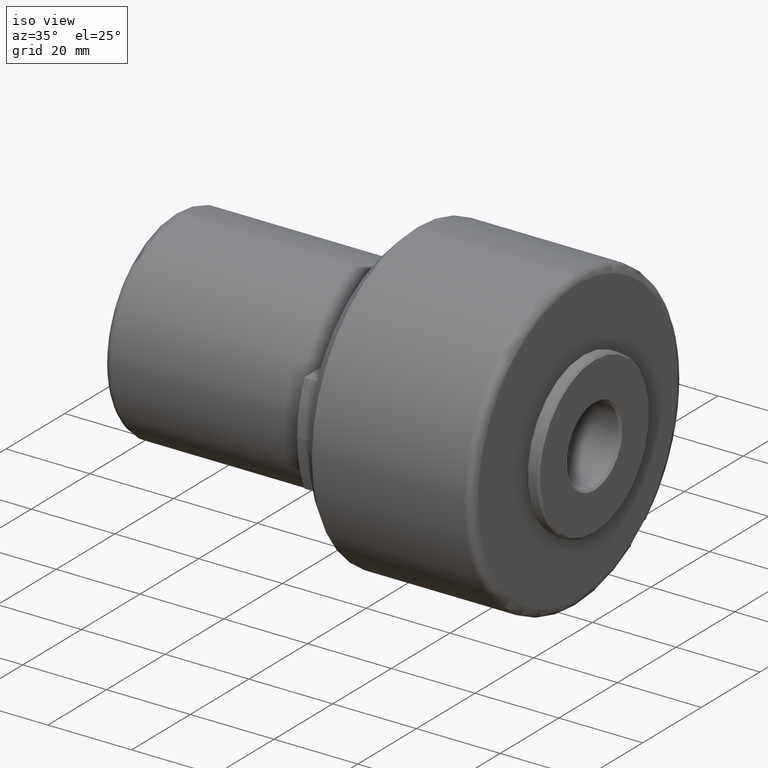
[diagram: clean part render]
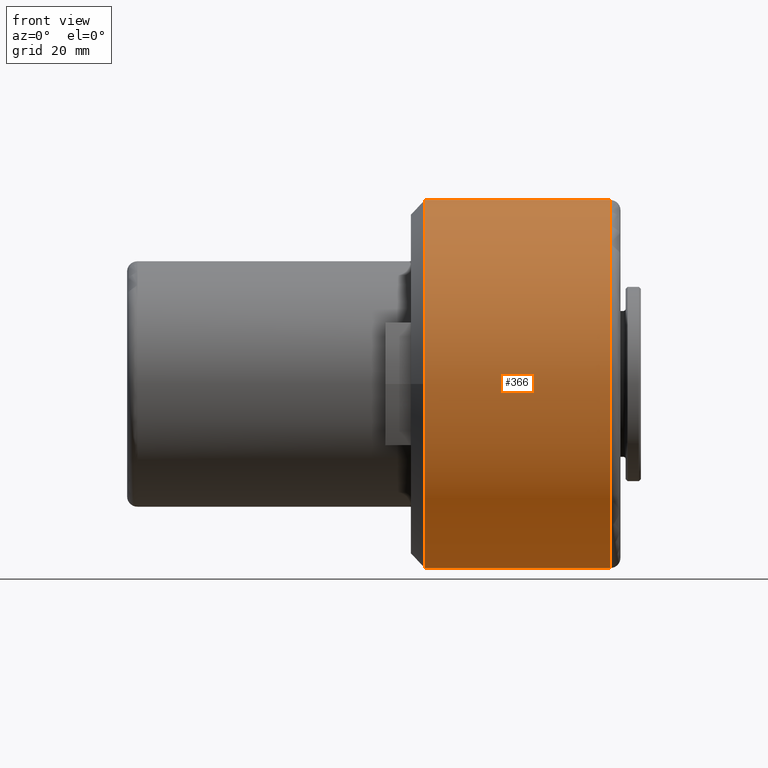
[diagram: tour spotlight — one face highlighted and labeled with its STEP entity id]
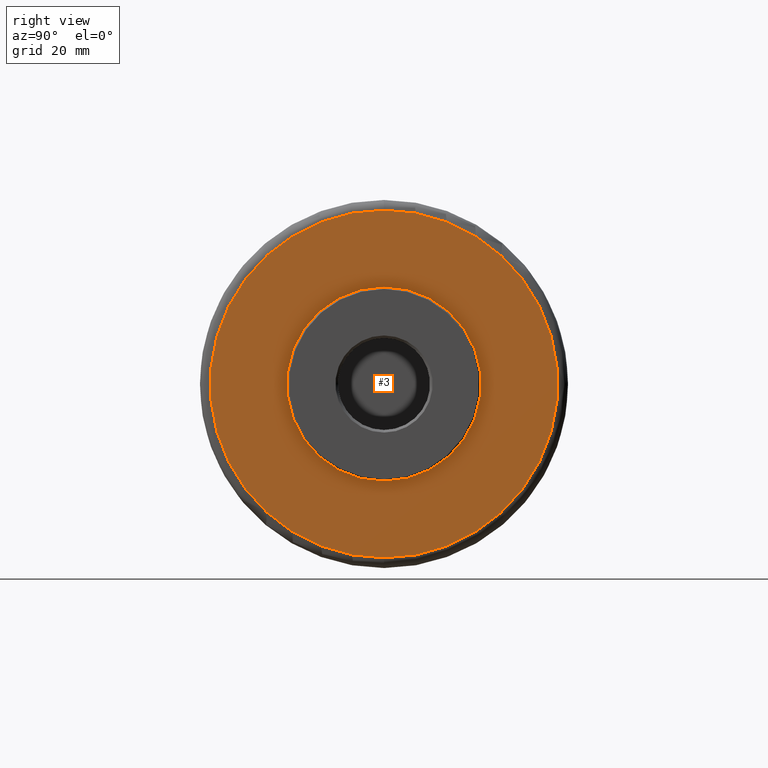
[diagram: tour spotlight — one face highlighted and labeled with its STEP entity id]
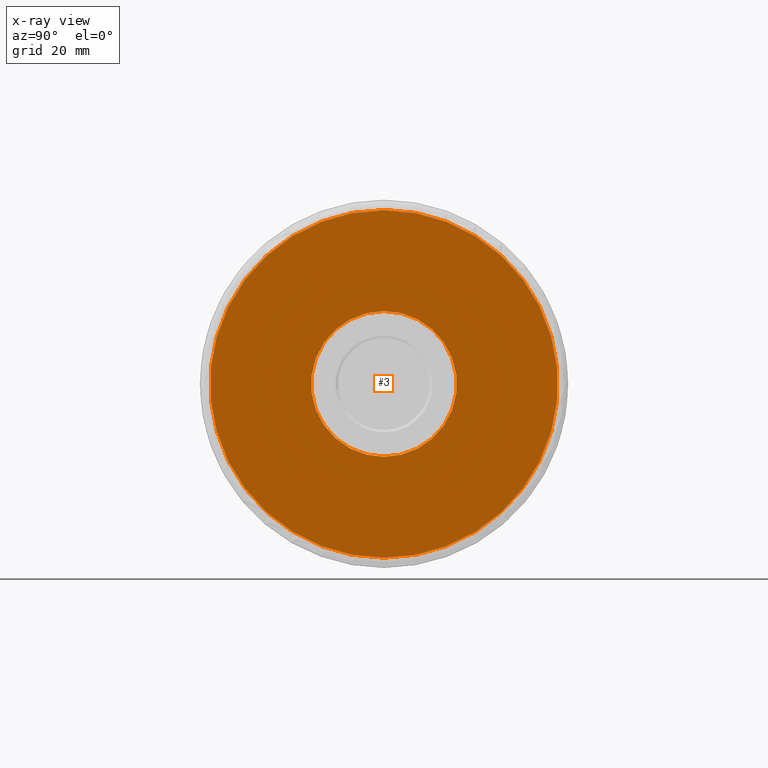
[diagram: x-ray of the same camera — body ghosted, this tour face saturated]
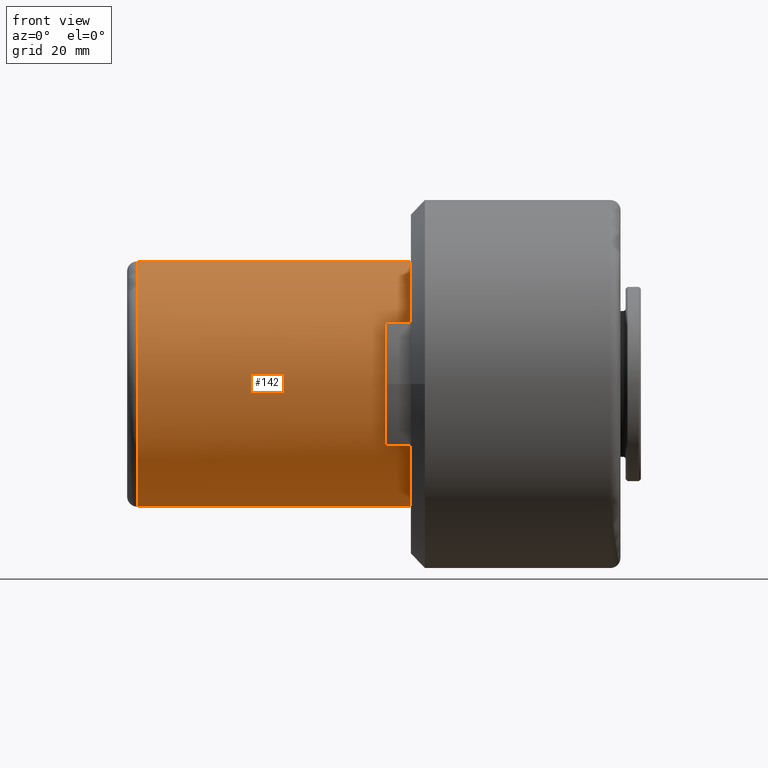
[diagram: tour spotlight — one face highlighted and labeled with its STEP entity id]
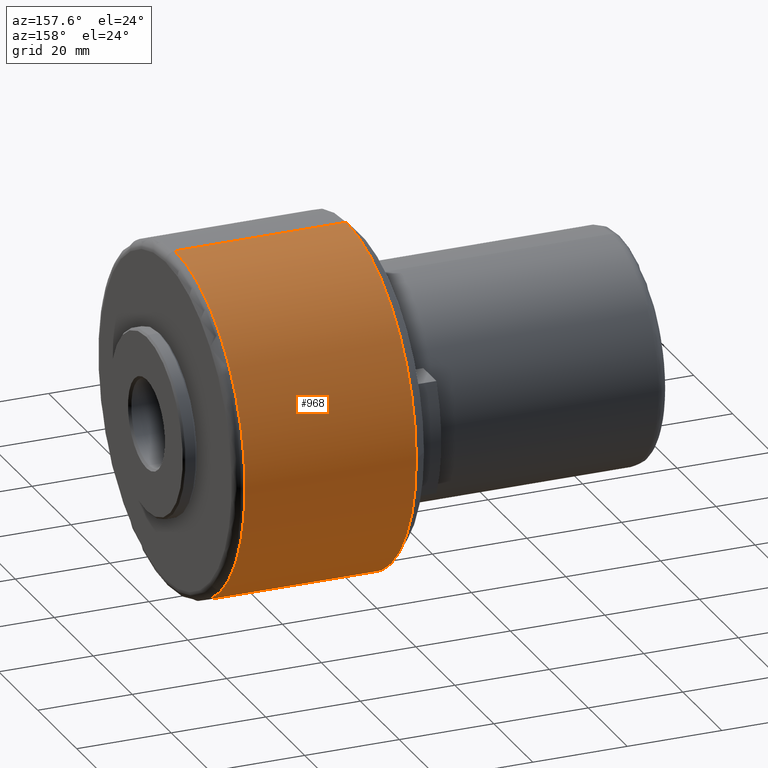
[diagram: tour spotlight — one face highlighted and labeled with its STEP entity id]
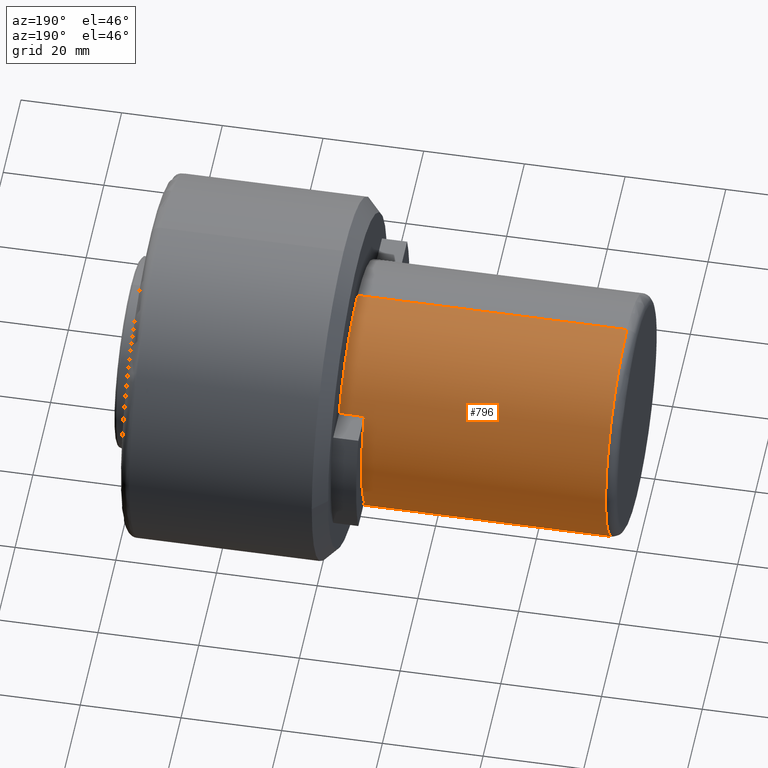
[diagram: tour spotlight — one face highlighted and labeled with its STEP entity id]
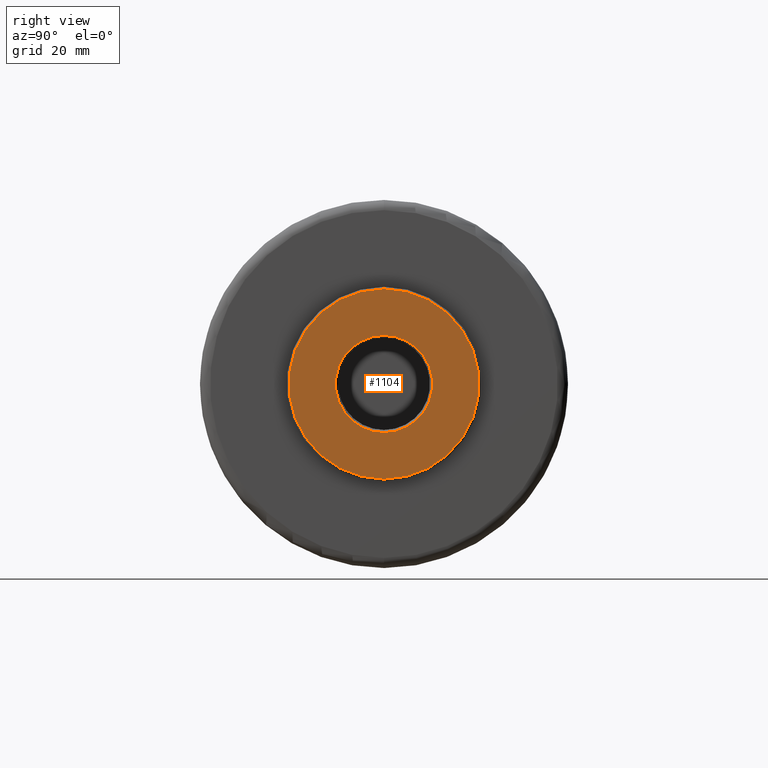
[diagram: tour spotlight — one face highlighted and labeled with its STEP entity id]
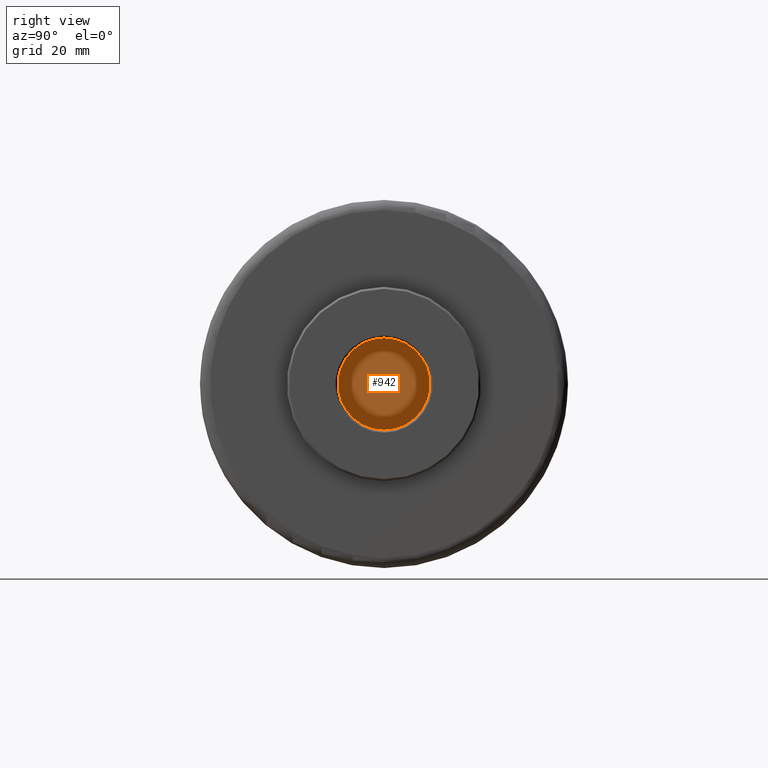
[diagram: tour spotlight — one face highlighted and labeled with its STEP entity id]
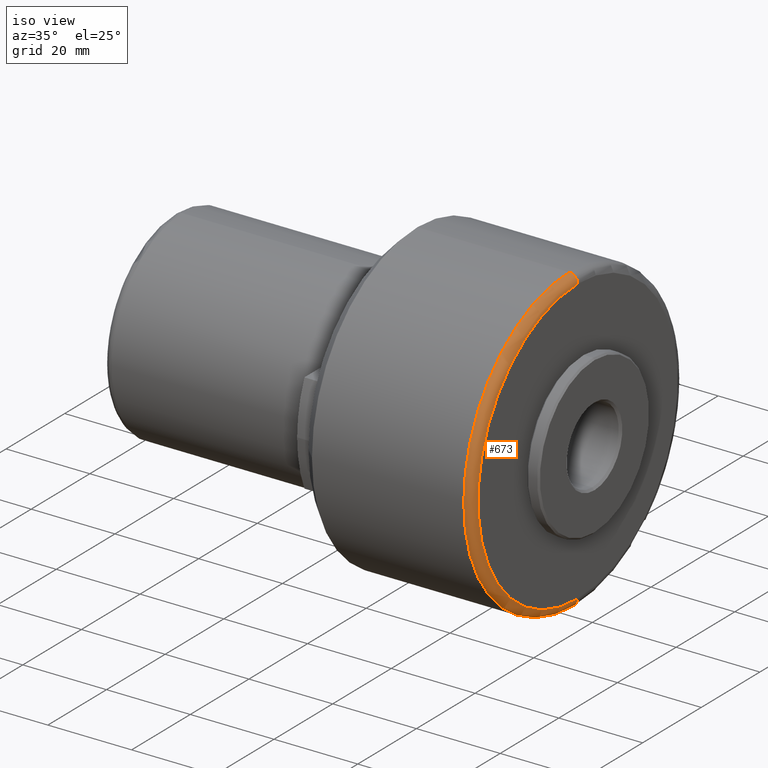
[diagram: tour spotlight — one face highlighted and labeled with its STEP entity id]
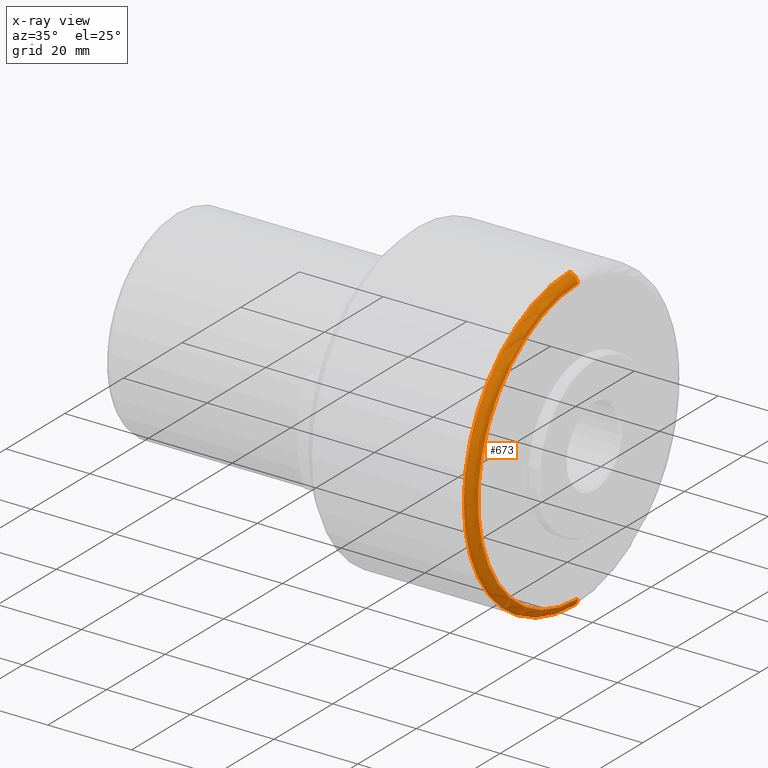
[diagram: x-ray of the same camera — body ghosted, this tour face saturated]
A machine part: a face-by-face anatomy tour. The part has 39 B-rep faces; the first image is the clean iso view, then the 8 largest visible faces are spotlighted one at a time (largest first), each with its STEP entity span.

Face 1 — front view, entity #366. In plain terms, the highlighted cylindrical surface (partial cylindrical patch) has radius 36 mm, axis along (-1, 0, 0).
Definition (entity closure, byte-faithful):
#1 = CARTESIAN_POINT ( 'NONE',  ( 94.50000000000000000, 0.0000000000000000000, 36.00000000000001400 ) ) ;
#41 = CARTESIAN_POINT ( 'NONE',  ( 73.59999999999999400, 0.0000000000000000000, 0.0000000000000000000 ) ) ;
#49 = FACE_OUTER_BOUND ( 'NONE', #573, .T. ) ;
#59 = CARTESIAN_POINT ( 'NONE',  ( 94.50000000000000000, 0.0000000000000000000, 0.0000000000000000000 ) ) ;
#60 = VECTOR ( 'NONE', #1173, 1000.000000000000000 ) ;
#77 = DIRECTION ( 'NONE',  ( -1.000000000000000000, 0.0000000000000000000, 0.0000000000000000000 ) ) ;
#92 = ORIENTED_EDGE ( 'NONE', *, *, #795, .T. ) ;
#131 = EDGE_CURVE ( 'NONE', #811, #530, #929, .T. ) ;
#138 = DIRECTION ( 'NONE',  ( 0.0000000000000000000, 0.0000000000000000000, 1.000000000000000000 ) ) ;
#204 = AXIS2_PLACEMENT_3D ( 'NONE', #41, #77, #138 ) ;
#216 = CARTESIAN_POINT ( 'NONE',  ( 58.25000000000001400, 0.0000000000000000000, 2.869467403871423700E-016 ) ) ;
#220 = DIRECTION ( 'NONE',  ( -1.000000000000000000, 0.0000000000000000000, 0.0000000000000000000 ) ) ;
#223 = ORIENTED_EDGE ( 'NONE', *, *, #1299, .F. ) ;
#302 = EDGE_CURVE ( 'NONE', #776, #707, #794, .T. ) ;
#309 = CARTESIAN_POINT ( 'NONE',  ( 58.25000000000000700, 0.0000000000000000000, 36.00000000000002800 ) ) ;
#366 = ADVANCED_FACE ( 'NONE', ( #49 ), #856, .T. ) ;
#377 = AXIS2_PLACEMENT_3D ( 'NONE', #216, #719, #976 ) ;
#443 = DIRECTION ( 'NONE',  ( -1.000000000000000000, 0.0000000000000000000, 0.0000000000000000000 ) ) ;
#446 = DIRECTION ( 'NONE',  ( 0.0000000000000000000, 0.0000000000000000000, 1.000000000000000000 ) ) ;
#449 = AXIS2_PLACEMENT_3D ( 'NONE', #59, #220, #446 ) ;
#530 = VERTEX_POINT ( 'NONE', #732 ) ;
#546 = ORIENTED_EDGE ( 'NONE', *, *, #1195, .T. ) ;
#550 = CARTESIAN_POINT ( 'NONE',  ( 94.50000000000000000, 4.408728476930472400E-015, -36.00000000000001400 ) ) ;
#573 = EDGE_LOOP ( 'NONE', ( #1114, #546, #92, #1179, #223 ) ) ;
#707 = VERTEX_POINT ( 'NONE', #309 ) ;
#719 = DIRECTION ( 'NONE',  ( -1.000000000000000000, -0.0000000000000000000, -1.043442692316876300E-016 ) ) ;
#732 = CARTESIAN_POINT ( 'NONE',  ( 58.25000000000002100, 4.408728476930474800E-015, -36.00000000000002800 ) ) ;
#776 = VERTEX_POINT ( 'NONE', #1136 ) ;
#794 = CIRCLE ( 'NONE', #377, 36.00000000000002800 ) ;
#795 = EDGE_CURVE ( 'NONE', #927, #707, #1080, .T. ) ;
#811 = VERTEX_POINT ( 'NONE', #550 ) ;
#830 = DIRECTION ( 'NONE',  ( -1.000000000000000000, -0.0000000000000000000, -1.043442692316876300E-016 ) ) ;
#841 = VECTOR ( 'NONE', #443, 1000.000000000000000 ) ;
#856 = CYLINDRICAL_SURFACE ( 'NONE', #204, 36.00000000000001400 ) ;
#927 = VERTEX_POINT ( 'NONE', #1 ) ;
#929 = LINE ( 'NONE', #984, #60 ) ;
#938 = CARTESIAN_POINT ( 'NONE',  ( 73.59999999999999400, 0.0000000000000000000, 36.00000000000001400 ) ) ;
#976 = DIRECTION ( 'NONE',  ( 1.927470528863117600E-016, 0.0000000000000000000, -1.000000000000000000 ) ) ;
#984 = CARTESIAN_POINT ( 'NONE',  ( 73.59999999999999400, 4.408728476930472400E-015, -36.00000000000001400 ) ) ;
#1007 = CARTESIAN_POINT ( 'NONE',  ( 58.25000000000001400, 0.0000000000000000000, 2.869467403871423700E-016 ) ) ;
#1078 = AXIS2_PLACEMENT_3D ( 'NONE', #1007, #830, #1184 ) ;
#1080 = LINE ( 'NONE', #938, #841 ) ;
#1114 = ORIENTED_EDGE ( 'NONE', *, *, #131, .F. ) ;
#1136 = CARTESIAN_POINT ( 'NONE',  ( 58.25000000000001400, -36.00000000000001400, 4.408728476930473200E-015 ) ) ;
#1147 = CIRCLE ( 'NONE', #1078, 36.00000000000002800 ) ;
#1173 = DIRECTION ( 'NONE',  ( -1.000000000000000000, 0.0000000000000000000, 0.0000000000000000000 ) ) ;
#1179 = ORIENTED_EDGE ( 'NONE', *, *, #302, .F. ) ;
#1184 = DIRECTION ( 'NONE',  ( 1.927470528863117600E-016, 0.0000000000000000000, -1.000000000000000000 ) ) ;
#1195 = EDGE_CURVE ( 'NONE', #811, #927, #1288, .T. ) ;
#1288 = CIRCLE ( 'NONE', #449, 36.00000000000001400 ) ;
#1299 = EDGE_CURVE ( 'NONE', #530, #776, #1147, .T. ) ;

Face 2 — right view, entity #3. An x-ray twin of the same camera follows (body ghosted, this face saturated) — the face is partly hidden behind the body. In plain terms, the highlighted planar face has unit normal (-1, 0, 0).
Definition (entity closure, byte-faithful):
#3 = ADVANCED_FACE ( 'NONE', ( #1347, #462 ), #654, .F. ) ;
#6 = CARTESIAN_POINT ( 'NONE',  ( 96.50000000000000000, 0.0000000000000000000, 0.0000000000000000000 ) ) ;
#29 = DIRECTION ( 'NONE',  ( 0.0000000000000000000, 0.0000000000000000000, 1.000000000000000000 ) ) ;
#66 = EDGE_CURVE ( 'NONE', #401, #693, #165, .T. ) ;
#91 = DIRECTION ( 'NONE',  ( 1.000000000000000000, -0.0000000000000000000, -0.0000000000000000000 ) ) ;
#161 = CARTESIAN_POINT ( 'NONE',  ( 96.50000000000002800, 1.232595164407830900E-029, 0.0000000000000000000 ) ) ;
#165 = CIRCLE ( 'NONE', #1274, 14.24999999999999300 ) ;
#203 = CARTESIAN_POINT ( 'NONE',  ( 96.50000000000000000, 33.90200000000000100, -33.90200000000000100 ) ) ;
#227 = DIRECTION ( 'NONE',  ( -1.000000000000000000, -4.869399230812090400E-016, -0.0000000000000000000 ) ) ;
#275 = CIRCLE ( 'NONE', #1158, 34.00000000000000700 ) ;
#279 = EDGE_CURVE ( 'NONE', #1393, #1208, #831, .T. ) ;
#296 = DIRECTION ( 'NONE',  ( -1.000000000000000000, -4.869399230812090400E-016, -0.0000000000000000000 ) ) ;
#297 = CIRCLE ( 'NONE', #867, 14.24999999999999300 ) ;
#361 = EDGE_LOOP ( 'NONE', ( #512, #952 ) ) ;
#398 = AXIS2_PLACEMENT_3D ( 'NONE', #203, #581, #1163 ) ;
#401 = VERTEX_POINT ( 'NONE', #1303 ) ;
#462 = FACE_BOUND ( 'NONE', #1003, .T. ) ;
#512 = ORIENTED_EDGE ( 'NONE', *, *, #1307, .T. ) ;
#516 = ORIENTED_EDGE ( 'NONE', *, *, #1028, .T. ) ;
#581 = DIRECTION ( 'NONE',  ( -1.000000000000000000, 0.0000000000000000000, 0.0000000000000000000 ) ) ;
#654 = PLANE ( 'NONE',  #398 ) ;
#693 = VERTEX_POINT ( 'NONE', #936 ) ;
#700 = DIRECTION ( 'NONE',  ( 0.0000000000000000000, 0.0000000000000000000, 1.000000000000000000 ) ) ;
#741 = CARTESIAN_POINT ( 'NONE',  ( 96.50000000000002800, 1.232595164407830900E-029, 0.0000000000000000000 ) ) ;
#749 = CARTESIAN_POINT ( 'NONE',  ( 96.50000000000000000, 4.286263797015737300E-015, -34.00000000000000700 ) ) ;
#831 = CIRCLE ( 'NONE', #1054, 34.00000000000000700 ) ;
#867 = AXIS2_PLACEMENT_3D ( 'NONE', #161, #227, #1071 ) ;
#936 = CARTESIAN_POINT ( 'NONE',  ( 96.50000000000002800, 2.736911063134408300E-045, 14.24999999999999300 ) ) ;
#947 = CARTESIAN_POINT ( 'NONE',  ( 96.50000000000000000, 0.0000000000000000000, 0.0000000000000000000 ) ) ;
#952 = ORIENTED_EDGE ( 'NONE', *, *, #279, .T. ) ;
#1003 = EDGE_LOOP ( 'NONE', ( #516, #1278 ) ) ;
#1028 = EDGE_CURVE ( 'NONE', #693, #401, #297, .T. ) ;
#1054 = AXIS2_PLACEMENT_3D ( 'NONE', #947, #91, #29 ) ;
#1063 = CARTESIAN_POINT ( 'NONE',  ( 96.50000000000000000, 0.0000000000000000000, 34.00000000000000700 ) ) ;
#1071 = DIRECTION ( 'NONE',  ( 0.0000000000000000000, -1.000000000000000000, 0.0000000000000000000 ) ) ;
#1158 = AXIS2_PLACEMENT_3D ( 'NONE', #6, #1376, #700 ) ;
#1163 = DIRECTION ( 'NONE',  ( 0.0000000000000000000, 0.0000000000000000000, 1.000000000000000000 ) ) ;
#1208 = VERTEX_POINT ( 'NONE', #1063 ) ;
#1274 = AXIS2_PLACEMENT_3D ( 'NONE', #741, #296, #1373 ) ;
#1278 = ORIENTED_EDGE ( 'NONE', *, *, #66, .T. ) ;
#1303 = CARTESIAN_POINT ( 'NONE',  ( 96.50000000000002800, 1.745121688784977800E-015, -14.24999999999999300 ) ) ;
#1307 = EDGE_CURVE ( 'NONE', #1208, #1393, #275, .T. ) ;
#1347 = FACE_OUTER_BOUND ( 'NONE', #361, .T. ) ;
#1373 = DIRECTION ( 'NONE',  ( 0.0000000000000000000, -1.000000000000000000, 0.0000000000000000000 ) ) ;
#1376 = DIRECTION ( 'NONE',  ( 1.000000000000000000, -0.0000000000000000000, -0.0000000000000000000 ) ) ;
#1393 = VERTEX_POINT ( 'NONE', #749 ) ;

Face 3 — front view, entity #142. In plain terms, the highlighted cylindrical surface (partial cylindrical patch) has radius 24 mm, axis along (-1, 0, -0).
Definition (entity closure, byte-faithful):
#8 = LINE ( 'NONE', #30, #636 ) ;
#10 = EDGE_CURVE ( 'NONE', #1038, #728, #1061, .T. ) ;
#21 = CARTESIAN_POINT ( 'NONE',  ( 55.49999999999999300, -20.78460969007334200, 12.00000000130456000 ) ) ;
#22 = CYLINDRICAL_SURFACE ( 'NONE', #395, 24.00000000000000000 ) ;
#30 = CARTESIAN_POINT ( 'NONE',  ( 55.49999999999999300, 0.0000000000000000000, 24.00000000000000000 ) ) ;
#65 = DIRECTION ( 'NONE',  ( 1.000000000000000000, -0.0000000000000000000, -0.0000000000000000000 ) ) ;
#95 = VECTOR ( 'NONE', #315, 1000.000000000000000 ) ;
#97 = CARTESIAN_POINT ( 'NONE',  ( 50.50000000381932400, -20.78460969330693700, -11.99999999570380800 ) ) ;
#105 = CARTESIAN_POINT ( 'NONE',  ( 55.49999999999999300, 0.0000000000000000000, -7.523163844717393100E-031 ) ) ;
#115 = EDGE_CURVE ( 'NONE', #643, #1038, #422, .T. ) ;
#116 = DIRECTION ( 'NONE',  ( 0.0000000000000000000, 0.0000000000000000000, 1.000000000000000000 ) ) ;
#142 = ADVANCED_FACE ( 'NONE', ( #355 ), #22, .T. ) ;
#190 = VERTEX_POINT ( 'NONE', #1053 ) ;
#211 = CARTESIAN_POINT ( 'NONE',  ( 2.000000000000001800, 0.0000000000000000000, -7.733975497063264400E-015 ) ) ;
#212 = VERTEX_POINT ( 'NONE', #930 ) ;
#221 = VECTOR ( 'NONE', #400, 1000.000000000000000 ) ;
#238 = VERTEX_POINT ( 'NONE', #317 ) ;
#254 = CARTESIAN_POINT ( 'NONE',  ( 50.50000000381932400, 0.0000000000000000000, -7.228014477715474900E-016 ) ) ;
#258 = CARTESIAN_POINT ( 'NONE',  ( 55.50000000000000000, 0.0000000000000000000, 0.0000000000000000000 ) ) ;
#265 = CARTESIAN_POINT ( 'NONE',  ( 55.50000000000000700, 2.939152317953647900E-015, -24.00000000000000000 ) ) ;
#315 = DIRECTION ( 'NONE',  ( 1.000000000000000000, -0.0000000000000000000, 1.445602896647339200E-016 ) ) ;
#317 = CARTESIAN_POINT ( 'NONE',  ( 55.50000000000000700, 2.939152317953647900E-015, -24.00000000000000000 ) ) ;
#321 = DIRECTION ( 'NONE',  ( -1.000000000000000000, 0.0000000000000000000, -1.445602896647339200E-016 ) ) ;
#327 = DIRECTION ( 'NONE',  ( -1.000000000000000000, 0.0000000000000000000, -1.445602896647339200E-016 ) ) ;
#332 = EDGE_CURVE ( 'NONE', #212, #1372, #696, .T. ) ;
#336 = CARTESIAN_POINT ( 'NONE',  ( 50.50000000190966200, -20.78460969007333900, 12.00000000065228200 ) ) ;
#345 = CARTESIAN_POINT ( 'NONE',  ( 55.50000000000000700, 0.0000000000000000000, 5.015442563508426400E-031 ) ) ;
#349 = VERTEX_POINT ( 'NONE', #787 ) ;
#355 = FACE_OUTER_BOUND ( 'NONE', #688, .T. ) ;
#365 = EDGE_CURVE ( 'NONE', #190, #349, #602, .T. ) ;
#371 = ORIENTED_EDGE ( 'NONE', *, *, #332, .T. ) ;
#383 = AXIS2_PLACEMENT_3D ( 'NONE', #105, #429, #1069 ) ;
#395 = AXIS2_PLACEMENT_3D ( 'NONE', #258, #990, #474 ) ;
#400 = DIRECTION ( 'NONE',  ( -1.000000000000000000, 0.0000000000000000000, -1.445602896647339200E-016 ) ) ;
#422 = LINE ( 'NONE', #519, #95 ) ;
#429 = DIRECTION ( 'NONE',  ( -1.000000000000000000, 0.0000000000000000000, -1.445602896647339200E-016 ) ) ;
#437 = AXIS2_PLACEMENT_3D ( 'NONE', #345, #1119, #801 ) ;
#474 = DIRECTION ( 'NONE',  ( -2.891205793294678300E-016, 0.0000000000000000000, 1.000000000000000000 ) ) ;
#496 = EDGE_CURVE ( 'NONE', #1372, #643, #995, .T. ) ;
#508 = LINE ( 'NONE', #265, #221 ) ;
#519 = CARTESIAN_POINT ( 'NONE',  ( 55.50000000000000000, -20.78460968932014900, 12.00000000260912700 ) ) ;
#532 = DIRECTION ( 'NONE',  ( 0.0000000000000000000, 0.0000000000000000000, 1.000000000000000000 ) ) ;
#533 = ORIENTED_EDGE ( 'NONE', *, *, #1250, .T. ) ;
#584 = AXIS2_PLACEMENT_3D ( 'NONE', #211, #65, #116 ) ;
#602 = CIRCLE ( 'NONE', #584, 24.00000000000000000 ) ;
#616 = AXIS2_PLACEMENT_3D ( 'NONE', #254, #1266, #532 ) ;
#636 = VECTOR ( 'NONE', #327, 1000.000000000000000 ) ;
#643 = VERTEX_POINT ( 'NONE', #336 ) ;
#668 = ORIENTED_EDGE ( 'NONE', *, *, #10, .T. ) ;
#688 = EDGE_LOOP ( 'NONE', ( #1124, #533, #371, #840, #909, #668, #1279, #1121 ) ) ;
#696 = LINE ( 'NONE', #743, #1267 ) ;
#716 = CIRCLE ( 'NONE', #437, 24.00000000000000000 ) ;
#728 = VERTEX_POINT ( 'NONE', #1235 ) ;
#743 = CARTESIAN_POINT ( 'NONE',  ( 55.50000000000000000, -20.78460969578734200, -11.99999999140761600 ) ) ;
#774 = EDGE_CURVE ( 'NONE', #238, #349, #508, .T. ) ;
#787 = CARTESIAN_POINT ( 'NONE',  ( 2.000000000000001800, 2.939152317953648700E-015, -24.00000000000001100 ) ) ;
#801 = DIRECTION ( 'NONE',  ( 0.0000000000000000000, 0.0000000000000000000, 1.000000000000000000 ) ) ;
#840 = ORIENTED_EDGE ( 'NONE', *, *, #496, .T. ) ;
#909 = ORIENTED_EDGE ( 'NONE', *, *, #115, .T. ) ;
#930 = CARTESIAN_POINT ( 'NONE',  ( 55.50000000000000700, -20.78460969578734200, -11.99999999140761600 ) ) ;
#990 = DIRECTION ( 'NONE',  ( -1.000000000000000000, 0.0000000000000000000, -1.445602896647339200E-016 ) ) ;
#995 = CIRCLE ( 'NONE', #616, 24.00000000000000000 ) ;
#1006 = EDGE_CURVE ( 'NONE', #728, #190, #8, .T. ) ;
#1038 = VERTEX_POINT ( 'NONE', #21 ) ;
#1053 = CARTESIAN_POINT ( 'NONE',  ( 2.000000000000001800, 0.0000000000000000000, 23.99999999999999300 ) ) ;
#1061 = CIRCLE ( 'NONE', #383, 24.00000000000000000 ) ;
#1069 = DIRECTION ( 'NONE',  ( 0.0000000000000000000, 0.0000000000000000000, 1.000000000000000000 ) ) ;
#1119 = DIRECTION ( 'NONE',  ( -1.000000000000000000, 0.0000000000000000000, -1.445602896647339200E-016 ) ) ;
#1121 = ORIENTED_EDGE ( 'NONE', *, *, #365, .T. ) ;
#1124 = ORIENTED_EDGE ( 'NONE', *, *, #774, .F. ) ;
#1235 = CARTESIAN_POINT ( 'NONE',  ( 55.49999999999999300, 0.0000000000000000000, 24.00000000000000400 ) ) ;
#1250 = EDGE_CURVE ( 'NONE', #238, #212, #716, .T. ) ;
#1266 = DIRECTION ( 'NONE',  ( -1.000000000000000000, 0.0000000000000000000, -1.445602896647339200E-016 ) ) ;
#1267 = VECTOR ( 'NONE', #321, 1000.000000000000000 ) ;
#1279 = ORIENTED_EDGE ( 'NONE', *, *, #1006, .T. ) ;
#1372 = VERTEX_POINT ( 'NONE', #97 ) ;

Face 4 — auxiliary view, entity #968. In plain terms, the highlighted cylindrical surface (partial cylindrical patch) has radius 36 mm, axis along (-1, 0, 0).
Definition (entity closure, byte-faithful):
#1 = CARTESIAN_POINT ( 'NONE',  ( 94.50000000000000000, 0.0000000000000000000, 36.00000000000001400 ) ) ;
#16 = ORIENTED_EDGE ( 'NONE', *, *, #479, .T. ) ;
#43 = FACE_OUTER_BOUND ( 'NONE', #847, .T. ) ;
#58 = EDGE_CURVE ( 'NONE', #707, #1327, #1285, .T. ) ;
#60 = VECTOR ( 'NONE', #1173, 1000.000000000000000 ) ;
#61 = DIRECTION ( 'NONE',  ( -1.000000000000000000, -0.0000000000000000000, -1.043442692316876300E-016 ) ) ;
#131 = EDGE_CURVE ( 'NONE', #811, #530, #929, .T. ) ;
#153 = DIRECTION ( 'NONE',  ( 0.0000000000000000000, 0.0000000000000000000, 1.000000000000000000 ) ) ;
#185 = AXIS2_PLACEMENT_3D ( 'NONE', #358, #752, #268 ) ;
#256 = DIRECTION ( 'NONE',  ( -1.000000000000000000, 0.0000000000000000000, 0.0000000000000000000 ) ) ;
#268 = DIRECTION ( 'NONE',  ( 1.927470528863117600E-016, -8.881784197001252300E-016, -1.000000000000000000 ) ) ;
#309 = CARTESIAN_POINT ( 'NONE',  ( 58.25000000000000700, 0.0000000000000000000, 36.00000000000002800 ) ) ;
#358 = CARTESIAN_POINT ( 'NONE',  ( 58.25000000000001400, 0.0000000000000000000, 2.869467403871423700E-016 ) ) ;
#363 = CIRCLE ( 'NONE', #185, 36.00000000000002800 ) ;
#443 = DIRECTION ( 'NONE',  ( -1.000000000000000000, 0.0000000000000000000, 0.0000000000000000000 ) ) ;
#479 = EDGE_CURVE ( 'NONE', #927, #811, #495, .T. ) ;
#493 = CARTESIAN_POINT ( 'NONE',  ( 94.50000000000000000, 0.0000000000000000000, 0.0000000000000000000 ) ) ;
#495 = CIRCLE ( 'NONE', #815, 36.00000000000001400 ) ;
#502 = ORIENTED_EDGE ( 'NONE', *, *, #131, .T. ) ;
#505 = ORIENTED_EDGE ( 'NONE', *, *, #795, .F. ) ;
#530 = VERTEX_POINT ( 'NONE', #732 ) ;
#535 = ORIENTED_EDGE ( 'NONE', *, *, #58, .F. ) ;
#550 = CARTESIAN_POINT ( 'NONE',  ( 94.50000000000000000, 4.408728476930472400E-015, -36.00000000000001400 ) ) ;
#572 = EDGE_CURVE ( 'NONE', #1327, #530, #363, .T. ) ;
#595 = CYLINDRICAL_SURFACE ( 'NONE', #1298, 36.00000000000001400 ) ;
#648 = DIRECTION ( 'NONE',  ( 1.927470528863117600E-016, 0.0000000000000000000, -1.000000000000000000 ) ) ;
#698 = DIRECTION ( 'NONE',  ( -1.000000000000000000, 0.0000000000000000000, 0.0000000000000000000 ) ) ;
#707 = VERTEX_POINT ( 'NONE', #309 ) ;
#732 = CARTESIAN_POINT ( 'NONE',  ( 58.25000000000002100, 4.408728476930474800E-015, -36.00000000000002800 ) ) ;
#752 = DIRECTION ( 'NONE',  ( -1.000000000000000000, -0.0000000000000000000, -1.043442692316876300E-016 ) ) ;
#795 = EDGE_CURVE ( 'NONE', #927, #707, #1080, .T. ) ;
#803 = CARTESIAN_POINT ( 'NONE',  ( 58.25000000000001400, 0.0000000000000000000, 2.869467403871423700E-016 ) ) ;
#811 = VERTEX_POINT ( 'NONE', #550 ) ;
#815 = AXIS2_PLACEMENT_3D ( 'NONE', #493, #698, #916 ) ;
#841 = VECTOR ( 'NONE', #443, 1000.000000000000000 ) ;
#847 = EDGE_LOOP ( 'NONE', ( #16, #502, #1242, #535, #505 ) ) ;
#916 = DIRECTION ( 'NONE',  ( 0.0000000000000000000, 0.0000000000000000000, 1.000000000000000000 ) ) ;
#927 = VERTEX_POINT ( 'NONE', #1 ) ;
#929 = LINE ( 'NONE', #984, #60 ) ;
#938 = CARTESIAN_POINT ( 'NONE',  ( 73.59999999999999400, 0.0000000000000000000, 36.00000000000001400 ) ) ;
#968 = ADVANCED_FACE ( 'NONE', ( #43 ), #595, .T. ) ;
#984 = CARTESIAN_POINT ( 'NONE',  ( 73.59999999999999400, 4.408728476930472400E-015, -36.00000000000001400 ) ) ;
#1080 = LINE ( 'NONE', #938, #841 ) ;
#1173 = DIRECTION ( 'NONE',  ( -1.000000000000000000, 0.0000000000000000000, 0.0000000000000000000 ) ) ;
#1228 = AXIS2_PLACEMENT_3D ( 'NONE', #803, #61, #648 ) ;
#1239 = CARTESIAN_POINT ( 'NONE',  ( 73.59999999999999400, 0.0000000000000000000, 0.0000000000000000000 ) ) ;
#1242 = ORIENTED_EDGE ( 'NONE', *, *, #572, .F. ) ;
#1285 = CIRCLE ( 'NONE', #1228, 36.00000000000002800 ) ;
#1298 = AXIS2_PLACEMENT_3D ( 'NONE', #1239, #256, #153 ) ;
#1306 = CARTESIAN_POINT ( 'NONE',  ( 58.25000000000001400, 36.00000000000001400, 0.0000000000000000000 ) ) ;
#1327 = VERTEX_POINT ( 'NONE', #1306 ) ;

Face 5 — auxiliary view, entity #796. In plain terms, the highlighted cylindrical surface (partial cylindrical patch) has radius 24 mm, axis along (-1, 0, -0).
Definition (entity closure, byte-faithful):
#7 = EDGE_CURVE ( 'NONE', #88, #191, #486, .T. ) ;
#8 = LINE ( 'NONE', #30, #636 ) ;
#30 = CARTESIAN_POINT ( 'NONE',  ( 55.49999999999999300, 0.0000000000000000000, 24.00000000000000000 ) ) ;
#39 = ORIENTED_EDGE ( 'NONE', *, *, #150, .T. ) ;
#83 = EDGE_CURVE ( 'NONE', #610, #88, #987, .T. ) ;
#88 = VERTEX_POINT ( 'NONE', #1198 ) ;
#118 = DIRECTION ( 'NONE',  ( -1.000000000000000000, 0.0000000000000000000, -1.445602896647339200E-016 ) ) ;
#127 = VECTOR ( 'NONE', #118, 1000.000000000000000 ) ;
#130 = AXIS2_PLACEMENT_3D ( 'NONE', #939, #793, #281 ) ;
#149 = AXIS2_PLACEMENT_3D ( 'NONE', #601, #1223, #171 ) ;
#150 = EDGE_CURVE ( 'NONE', #191, #804, #1181, .T. ) ;
#158 = ORIENTED_EDGE ( 'NONE', *, *, #1006, .F. ) ;
#171 = DIRECTION ( 'NONE',  ( -2.891205793294678300E-016, 0.0000000000000000000, 1.000000000000000000 ) ) ;
#190 = VERTEX_POINT ( 'NONE', #1053 ) ;
#191 = VERTEX_POINT ( 'NONE', #252 ) ;
#209 = CARTESIAN_POINT ( 'NONE',  ( 50.50000000381932400, 0.0000000000000000000, -7.228014477715469900E-016 ) ) ;
#221 = VECTOR ( 'NONE', #400, 1000.000000000000000 ) ;
#232 = DIRECTION ( 'NONE',  ( -1.000000000000000000, 0.0000000000000000000, -1.445602896647339200E-016 ) ) ;
#238 = VERTEX_POINT ( 'NONE', #317 ) ;
#252 = CARTESIAN_POINT ( 'NONE',  ( 50.50000000190966200, 20.78460969117919900, -11.99999999969457700 ) ) ;
#265 = CARTESIAN_POINT ( 'NONE',  ( 55.50000000000000700, 2.939152317953647900E-015, -24.00000000000000000 ) ) ;
#281 = DIRECTION ( 'NONE',  ( 0.0000000000000000000, 0.0000000000000000000, 1.000000000000000000 ) ) ;
#317 = CARTESIAN_POINT ( 'NONE',  ( 55.50000000000000700, 2.939152317953647900E-015, -24.00000000000000000 ) ) ;
#327 = DIRECTION ( 'NONE',  ( -1.000000000000000000, 0.0000000000000000000, -1.445602896647339200E-016 ) ) ;
#349 = VERTEX_POINT ( 'NONE', #787 ) ;
#372 = DIRECTION ( 'NONE',  ( 1.000000000000000000, -0.0000000000000000000, -0.0000000000000000000 ) ) ;
#400 = DIRECTION ( 'NONE',  ( -1.000000000000000000, 0.0000000000000000000, -1.445602896647339200E-016 ) ) ;
#442 = CARTESIAN_POINT ( 'NONE',  ( 55.50000000000000000, 20.78460969240347500, -11.99999999726865100 ) ) ;
#459 = EDGE_CURVE ( 'NONE', #804, #238, #1350, .T. ) ;
#460 = DIRECTION ( 'NONE',  ( 0.0000000000000000000, 0.0000000000000000000, 1.000000000000000000 ) ) ;
#486 = CIRCLE ( 'NONE', #1177, 24.00000000000000000 ) ;
#508 = LINE ( 'NONE', #265, #221 ) ;
#539 = DIRECTION ( 'NONE',  ( 0.0000000000000000000, 0.0000000000000000000, 1.000000000000000000 ) ) ;
#589 = ORIENTED_EDGE ( 'NONE', *, *, #7, .T. ) ;
#601 = CARTESIAN_POINT ( 'NONE',  ( 55.50000000000000000, 0.0000000000000000000, 0.0000000000000000000 ) ) ;
#610 = VERTEX_POINT ( 'NONE', #1169 ) ;
#614 = VECTOR ( 'NONE', #790, 1000.000000000000000 ) ;
#623 = ORIENTED_EDGE ( 'NONE', *, *, #1073, .T. ) ;
#636 = VECTOR ( 'NONE', #327, 1000.000000000000000 ) ;
#652 = CIRCLE ( 'NONE', #876, 24.00000000000000000 ) ;
#701 = AXIS2_PLACEMENT_3D ( 'NONE', #1305, #232, #460 ) ;
#728 = VERTEX_POINT ( 'NONE', #1235 ) ;
#774 = EDGE_CURVE ( 'NONE', #238, #349, #508, .T. ) ;
#787 = CARTESIAN_POINT ( 'NONE',  ( 2.000000000000001800, 2.939152317953648700E-015, -24.00000000000001100 ) ) ;
#790 = DIRECTION ( 'NONE',  ( 1.000000000000000000, -0.0000000000000000000, 1.445602896647339200E-016 ) ) ;
#793 = DIRECTION ( 'NONE',  ( -1.000000000000000000, 0.0000000000000000000, -1.445602896647339200E-016 ) ) ;
#796 = ADVANCED_FACE ( 'NONE', ( #1338 ), #1309, .T. ) ;
#804 = VERTEX_POINT ( 'NONE', #442 ) ;
#807 = EDGE_LOOP ( 'NONE', ( #1178, #868, #1072, #158, #623, #861, #589, #39 ) ) ;
#861 = ORIENTED_EDGE ( 'NONE', *, *, #83, .T. ) ;
#868 = ORIENTED_EDGE ( 'NONE', *, *, #774, .T. ) ;
#876 = AXIS2_PLACEMENT_3D ( 'NONE', #1143, #372, #1013 ) ;
#939 = CARTESIAN_POINT ( 'NONE',  ( 55.49999999999999300, 0.0000000000000000000, -7.523163844717393100E-031 ) ) ;
#987 = LINE ( 'NONE', #1004, #127 ) ;
#1004 = CARTESIAN_POINT ( 'NONE',  ( 55.50000000000000000, 20.78460969332610700, 11.99999999567060400 ) ) ;
#1006 = EDGE_CURVE ( 'NONE', #728, #190, #8, .T. ) ;
#1013 = DIRECTION ( 'NONE',  ( 0.0000000000000000000, 0.0000000000000000000, 1.000000000000000000 ) ) ;
#1053 = CARTESIAN_POINT ( 'NONE',  ( 2.000000000000001800, 0.0000000000000000000, 23.99999999999999300 ) ) ;
#1072 = ORIENTED_EDGE ( 'NONE', *, *, #1262, .T. ) ;
#1073 = EDGE_CURVE ( 'NONE', #728, #610, #1093, .T. ) ;
#1093 = CIRCLE ( 'NONE', #130, 24.00000000000000000 ) ;
#1113 = CARTESIAN_POINT ( 'NONE',  ( 55.50000000000000000, 20.78460969153187700, -11.99999999877830200 ) ) ;
#1143 = CARTESIAN_POINT ( 'NONE',  ( 2.000000000000001800, 0.0000000000000000000, -7.733975497063264400E-015 ) ) ;
#1169 = CARTESIAN_POINT ( 'NONE',  ( 55.50000000000000700, 20.78460969332610700, 11.99999999567060100 ) ) ;
#1177 = AXIS2_PLACEMENT_3D ( 'NONE', #209, #1185, #539 ) ;
#1178 = ORIENTED_EDGE ( 'NONE', *, *, #459, .T. ) ;
#1181 = LINE ( 'NONE', #1113, #614 ) ;
#1185 = DIRECTION ( 'NONE',  ( -1.000000000000000000, 0.0000000000000000000, -1.445602896647339200E-016 ) ) ;
#1198 = CARTESIAN_POINT ( 'NONE',  ( 50.50000000190966200, 20.78460969207631600, 11.99999999891765200 ) ) ;
#1223 = DIRECTION ( 'NONE',  ( -1.000000000000000000, 0.0000000000000000000, -1.445602896647339200E-016 ) ) ;
#1235 = CARTESIAN_POINT ( 'NONE',  ( 55.49999999999999300, 0.0000000000000000000, 24.00000000000000400 ) ) ;
#1262 = EDGE_CURVE ( 'NONE', #349, #190, #652, .T. ) ;
#1305 = CARTESIAN_POINT ( 'NONE',  ( 55.50000000000000700, 0.0000000000000000000, 5.015442563508426400E-031 ) ) ;
#1309 = CYLINDRICAL_SURFACE ( 'NONE', #149, 24.00000000000000000 ) ;
#1338 = FACE_OUTER_BOUND ( 'NONE', #807, .T. ) ;
#1350 = CIRCLE ( 'NONE', #701, 24.00000000000000000 ) ;

Face 6 — right view, entity #1104. In plain terms, the highlighted planar face has unit normal (1, -0, 0).
Definition (entity closure, byte-faithful):
#46 = EDGE_CURVE ( 'NONE', #725, #1148, #457, .T. ) ;
#54 = VERTEX_POINT ( 'NONE', #965 ) ;
#55 = EDGE_CURVE ( 'NONE', #1148, #725, #780, .T. ) ;
#121 = AXIS2_PLACEMENT_3D ( 'NONE', #726, #381, #998 ) ;
#137 = EDGE_CURVE ( 'NONE', #54, #1070, #393, .T. ) ;
#179 = CARTESIAN_POINT ( 'NONE',  ( 100.5000000000000300, 0.0000000000000000000, 18.59999999999997300 ) ) ;
#249 = AXIS2_PLACEMENT_3D ( 'NONE', #611, #922, #1314 ) ;
#292 = ORIENTED_EDGE ( 'NONE', *, *, #137, .F. ) ;
#381 = DIRECTION ( 'NONE',  ( -1.000000000000000000, 0.0000000000000000000, 0.0000000000000000000 ) ) ;
#386 = AXIS2_PLACEMENT_3D ( 'NONE', #751, #625, #941 ) ;
#393 = CIRCLE ( 'NONE', #121, 18.59999999999997300 ) ;
#426 = CARTESIAN_POINT ( 'NONE',  ( 100.5000000000000000, 0.0000000000000000000, -9.499999999999966200 ) ) ;
#450 = EDGE_CURVE ( 'NONE', #1070, #54, #564, .T. ) ;
#457 = CIRCLE ( 'NONE', #386, 9.499999999999966200 ) ;
#492 = FACE_OUTER_BOUND ( 'NONE', #644, .T. ) ;
#522 = FACE_BOUND ( 'NONE', #823, .T. ) ;
#545 = DIRECTION ( 'NONE',  ( 0.0000000000000000000, 0.0000000000000000000, 1.000000000000000000 ) ) ;
#564 = CIRCLE ( 'NONE', #846, 18.59999999999997300 ) ;
#611 = CARTESIAN_POINT ( 'NONE',  ( 100.5000000000000000, 0.0000000000000000000, 0.0000000000000000000 ) ) ;
#625 = DIRECTION ( 'NONE',  ( -1.000000000000000000, 0.0000000000000000000, -0.0000000000000000000 ) ) ;
#632 = AXIS2_PLACEMENT_3D ( 'NONE', #919, #1130, #954 ) ;
#644 = EDGE_LOOP ( 'NONE', ( #1241, #292 ) ) ;
#665 = ORIENTED_EDGE ( 'NONE', *, *, #46, .T. ) ;
#669 = CARTESIAN_POINT ( 'NONE',  ( 100.5000000000000300, 0.0000000000000000000, 0.0000000000000000000 ) ) ;
#725 = VERTEX_POINT ( 'NONE', #1029 ) ;
#726 = CARTESIAN_POINT ( 'NONE',  ( 100.5000000000000300, 0.0000000000000000000, 0.0000000000000000000 ) ) ;
#751 = CARTESIAN_POINT ( 'NONE',  ( 100.5000000000000000, 0.0000000000000000000, 0.0000000000000000000 ) ) ;
#771 = DIRECTION ( 'NONE',  ( -1.000000000000000000, 0.0000000000000000000, 0.0000000000000000000 ) ) ;
#780 = CIRCLE ( 'NONE', #249, 9.499999999999966200 ) ;
#823 = EDGE_LOOP ( 'NONE', ( #1282, #665 ) ) ;
#846 = AXIS2_PLACEMENT_3D ( 'NONE', #669, #771, #545 ) ;
#919 = CARTESIAN_POINT ( 'NONE',  ( 100.5000000000000000, -18.82320000000000300, 18.82320000000000300 ) ) ;
#922 = DIRECTION ( 'NONE',  ( -1.000000000000000000, 0.0000000000000000000, -0.0000000000000000000 ) ) ;
#941 = DIRECTION ( 'NONE',  ( 0.0000000000000000000, 0.0000000000000000000, -1.000000000000000000 ) ) ;
#954 = DIRECTION ( 'NONE',  ( 0.0000000000000000000, 0.0000000000000000000, -1.000000000000000000 ) ) ;
#965 = CARTESIAN_POINT ( 'NONE',  ( 100.5000000000000300, 2.302335982397022300E-015, -18.59999999999997300 ) ) ;
#998 = DIRECTION ( 'NONE',  ( 0.0000000000000000000, 0.0000000000000000000, 1.000000000000000000 ) ) ;
#1029 = CARTESIAN_POINT ( 'NONE',  ( 100.5000000000000000, 1.163414459189981300E-015, 9.499999999999966200 ) ) ;
#1070 = VERTEX_POINT ( 'NONE', #179 ) ;
#1104 = ADVANCED_FACE ( 'NONE', ( #522, #492 ), #1150, .T. ) ;
#1130 = DIRECTION ( 'NONE',  ( 1.000000000000000000, -0.0000000000000000000, 0.0000000000000000000 ) ) ;
#1148 = VERTEX_POINT ( 'NONE', #426 ) ;
#1150 = PLANE ( 'NONE',  #632 ) ;
#1241 = ORIENTED_EDGE ( 'NONE', *, *, #450, .F. ) ;
#1282 = ORIENTED_EDGE ( 'NONE', *, *, #55, .T. ) ;
#1314 = DIRECTION ( 'NONE',  ( 0.0000000000000000000, 0.0000000000000000000, -1.000000000000000000 ) ) ;

Face 7 — right view, entity #942. In plain terms, the highlighted planar face has unit normal (1, 0, 0).
Definition (entity closure, byte-faithful):
#37 = EDGE_CURVE ( 'NONE', #1055, #553, #1024, .T. ) ;
#290 = AXIS2_PLACEMENT_3D ( 'NONE', #380, #1118, #1030 ) ;
#380 = CARTESIAN_POINT ( 'NONE',  ( 60.50000000000003600, 8.999999999999994700, 0.0000000000000000000 ) ) ;
#407 = CARTESIAN_POINT ( 'NONE',  ( 60.50000000000003600, 1.102182119232617300E-015, -8.999999999999994700 ) ) ;
#438 = AXIS2_PLACEMENT_3D ( 'NONE', #1182, #970, #1240 ) ;
#531 = EDGE_CURVE ( 'NONE', #553, #1055, #690, .T. ) ;
#553 = VERTEX_POINT ( 'NONE', #407 ) ;
#618 = PLANE ( 'NONE',  #290 ) ;
#651 = CARTESIAN_POINT ( 'NONE',  ( 60.50000000000003600, 0.0000000000000000000, 8.999999999999994700 ) ) ;
#690 = CIRCLE ( 'NONE', #1112, 8.999999999999994700 ) ;
#706 = ORIENTED_EDGE ( 'NONE', *, *, #531, .F. ) ;
#915 = FACE_OUTER_BOUND ( 'NONE', #1191, .T. ) ;
#942 = ADVANCED_FACE ( 'NONE', ( #915 ), #618, .T. ) ;
#970 = DIRECTION ( 'NONE',  ( -1.000000000000000000, -0.0000000000000000000, -0.0000000000000000000 ) ) ;
#1024 = CIRCLE ( 'NONE', #438, 8.999999999999994700 ) ;
#1030 = DIRECTION ( 'NONE',  ( 0.0000000000000000000, 0.0000000000000000000, -1.000000000000000000 ) ) ;
#1055 = VERTEX_POINT ( 'NONE', #651 ) ;
#1112 = AXIS2_PLACEMENT_3D ( 'NONE', #1117, #1263, #1284 ) ;
#1117 = CARTESIAN_POINT ( 'NONE',  ( 60.50000000000003600, 0.0000000000000000000, 0.0000000000000000000 ) ) ;
#1118 = DIRECTION ( 'NONE',  ( 1.000000000000000000, 0.0000000000000000000, 0.0000000000000000000 ) ) ;
#1182 = CARTESIAN_POINT ( 'NONE',  ( 60.50000000000003600, 0.0000000000000000000, 0.0000000000000000000 ) ) ;
#1191 = EDGE_LOOP ( 'NONE', ( #1326, #706 ) ) ;
#1240 = DIRECTION ( 'NONE',  ( 0.0000000000000000000, 0.0000000000000000000, 1.000000000000000000 ) ) ;
#1263 = DIRECTION ( 'NONE',  ( -1.000000000000000000, -0.0000000000000000000, -0.0000000000000000000 ) ) ;
#1284 = DIRECTION ( 'NONE',  ( 0.0000000000000000000, 0.0000000000000000000, 1.000000000000000000 ) ) ;
#1326 = ORIENTED_EDGE ( 'NONE', *, *, #37, .F. ) ;

Face 8 — iso view, entity #673. An x-ray twin of the same camera follows (body ghosted, this face saturated) — the face is partly hidden behind the body. In plain terms, the highlighted toroidal blend (fillet) surface has major radius 34 mm and minor (blend) radius 2 mm.
Definition (entity closure, byte-faithful):
#1 = CARTESIAN_POINT ( 'NONE',  ( 94.50000000000000000, 0.0000000000000000000, 36.00000000000001400 ) ) ;
#6 = CARTESIAN_POINT ( 'NONE',  ( 96.50000000000000000, 0.0000000000000000000, 0.0000000000000000000 ) ) ;
#59 = CARTESIAN_POINT ( 'NONE',  ( 94.50000000000000000, 0.0000000000000000000, 0.0000000000000000000 ) ) ;
#136 = CIRCLE ( 'NONE', #848, 2.000000000000001800 ) ;
#220 = DIRECTION ( 'NONE',  ( -1.000000000000000000, 0.0000000000000000000, 0.0000000000000000000 ) ) ;
#248 = CIRCLE ( 'NONE', #933, 2.000000000000001800 ) ;
#275 = CIRCLE ( 'NONE', #1158, 34.00000000000000700 ) ;
#282 = ORIENTED_EDGE ( 'NONE', *, *, #1307, .F. ) ;
#286 = CARTESIAN_POINT ( 'NONE',  ( 94.50000000000000000, 0.0000000000000000000, 0.0000000000000000000 ) ) ;
#404 = ORIENTED_EDGE ( 'NONE', *, *, #1195, .F. ) ;
#446 = DIRECTION ( 'NONE',  ( 0.0000000000000000000, 0.0000000000000000000, 1.000000000000000000 ) ) ;
#449 = AXIS2_PLACEMENT_3D ( 'NONE', #59, #220, #446 ) ;
#487 = DIRECTION ( 'NONE',  ( 0.0000000000000000000, -1.000000000000000000, 0.0000000000000000000 ) ) ;
#542 = EDGE_CURVE ( 'NONE', #1393, #811, #136, .T. ) ;
#550 = CARTESIAN_POINT ( 'NONE',  ( 94.50000000000000000, 4.408728476930472400E-015, -36.00000000000001400 ) ) ;
#621 = DIRECTION ( 'NONE',  ( 0.0000000000000000000, -1.224646799147353500E-016, 1.000000000000000000 ) ) ;
#673 = ADVANCED_FACE ( 'NONE', ( #1394 ), #1155, .T. ) ;
#700 = DIRECTION ( 'NONE',  ( 0.0000000000000000000, 0.0000000000000000000, 1.000000000000000000 ) ) ;
#749 = CARTESIAN_POINT ( 'NONE',  ( 96.50000000000000000, 4.286263797015737300E-015, -34.00000000000000700 ) ) ;
#755 = EDGE_CURVE ( 'NONE', #1208, #927, #248, .T. ) ;
#811 = VERTEX_POINT ( 'NONE', #550 ) ;
#816 = CARTESIAN_POINT ( 'NONE',  ( 94.50000000000000000, 0.0000000000000000000, 34.00000000000000700 ) ) ;
#848 = AXIS2_PLACEMENT_3D ( 'NONE', #869, #1335, #621 ) ;
#850 = EDGE_LOOP ( 'NONE', ( #994, #282, #1100, #404 ) ) ;
#869 = CARTESIAN_POINT ( 'NONE',  ( 94.50000000000000000, 4.163799117101001300E-015, -34.00000000000000700 ) ) ;
#872 = DIRECTION ( 'NONE',  ( 0.0000000000000000000, 0.0000000000000000000, -1.000000000000000000 ) ) ;
#927 = VERTEX_POINT ( 'NONE', #1 ) ;
#933 = AXIS2_PLACEMENT_3D ( 'NONE', #816, #487, #872 ) ;
#994 = ORIENTED_EDGE ( 'NONE', *, *, #542, .F. ) ;
#1063 = CARTESIAN_POINT ( 'NONE',  ( 96.50000000000000000, 0.0000000000000000000, 34.00000000000000700 ) ) ;
#1100 = ORIENTED_EDGE ( 'NONE', *, *, #755, .T. ) ;
#1126 = AXIS2_PLACEMENT_3D ( 'NONE', #286, #1348, #1339 ) ;
#1155 = TOROIDAL_SURFACE ( 'NONE', #1126, 34.00000000000000700, 2.000000000000000000 ) ;
#1158 = AXIS2_PLACEMENT_3D ( 'NONE', #6, #1376, #700 ) ;
#1195 = EDGE_CURVE ( 'NONE', #811, #927, #1288, .T. ) ;
#1208 = VERTEX_POINT ( 'NONE', #1063 ) ;
#1288 = CIRCLE ( 'NONE', #449, 36.00000000000001400 ) ;
#1307 = EDGE_CURVE ( 'NONE', #1208, #1393, #275, .T. ) ;
#1335 = DIRECTION ( 'NONE',  ( 0.0000000000000000000, 1.000000000000000000, 1.224646799147353200E-016 ) ) ;
#1339 = DIRECTION ( 'NONE',  ( 0.0000000000000000000, 0.0000000000000000000, 1.000000000000000000 ) ) ;
#1348 = DIRECTION ( 'NONE',  ( -1.000000000000000000, 0.0000000000000000000, 0.0000000000000000000 ) ) ;
#1376 = DIRECTION ( 'NONE',  ( 1.000000000000000000, -0.0000000000000000000, -0.0000000000000000000 ) ) ;
#1393 = VERTEX_POINT ( 'NONE', #749 ) ;
#1394 = FACE_OUTER_BOUND ( 'NONE', #850, .T. ) ;